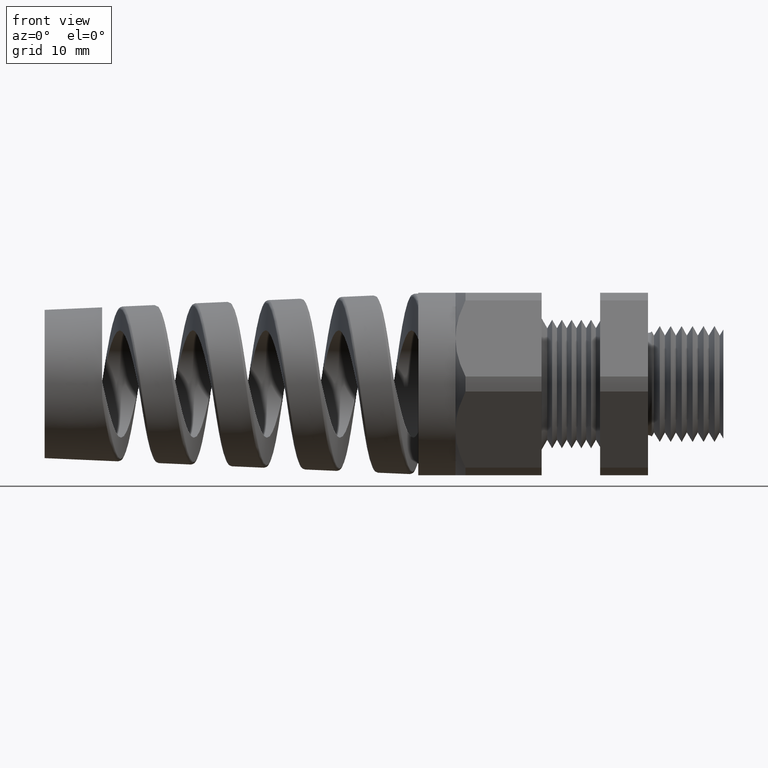
[diagram: clean part render]
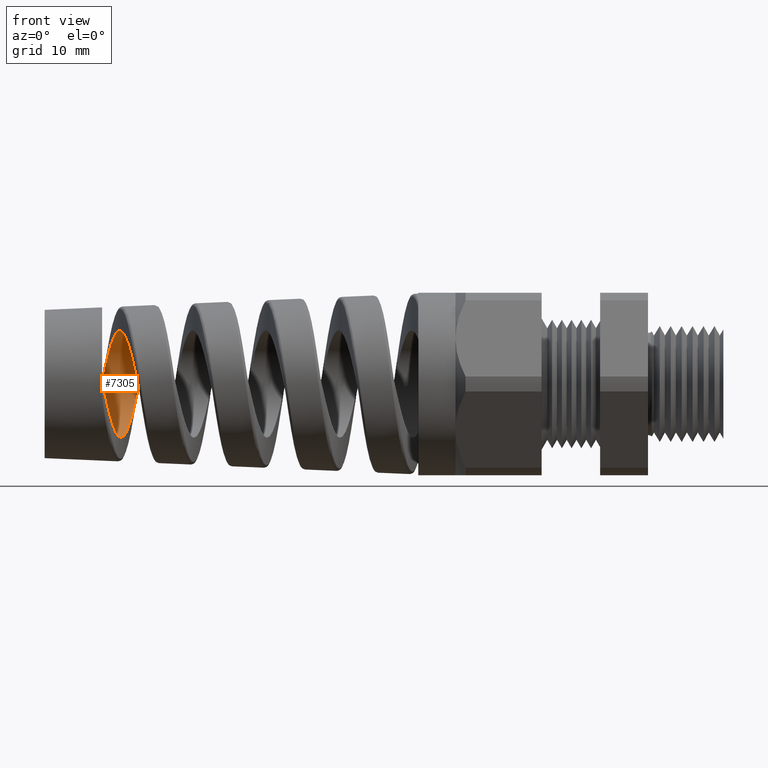
[diagram: same view with one face highlighted and labeled with its STEP entity id]
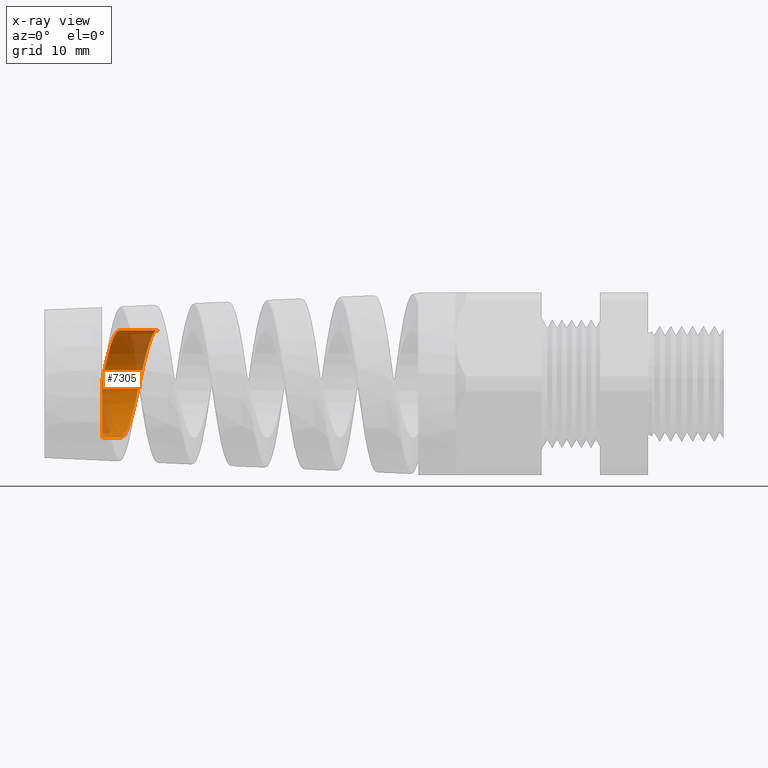
[diagram: x-ray of the same camera — body ghosted, the highlighted face saturated]
A machine part, front view. The second image highlights one B-rep face of the part: STEP entity #7305.
The next image is the same camera in x-ray: the body ghosted, the highlighted face saturated — about 25% of this face is hidden behind the body in this view.
In plain terms, the highlighted cylindrical surface (partial cylindrical patch) has radius 5.6007 mm, axis along (1, 0, 0).
Its self-contained STEP definition (entity closure, byte-faithful):
#539 = VERTEX_POINT ( 'NONE', #1653 ) ;
#1653 = CARTESIAN_POINT ( 'NONE',  ( -2.553780000000000200, 0.0000000000000000000, -0.2204999999999998400 ) ) ;
#2343 = CARTESIAN_POINT ( 'NONE',  ( -2.476014634052865000, -1.328507817036094700E-015, -0.2204999999999998600 ) ) ;
#3352 = CARTESIAN_POINT ( 'NONE',  ( -2.325946081408285100, 7.570847178066594400E-014, 0.2205000000000000800 ) ) ;
#3403 = DIRECTION ( 'NONE',  ( 1.000000000000000000, 0.0000000000000000000, 0.0000000000000000000 ) ) ;
#3404 = VECTOR ( 'NONE', #3403, 39.37007874015748100 ) ;
#3405 = CARTESIAN_POINT ( 'NONE',  ( 0.0000000000000000000, 2.700346192119914000E-017, 0.2205000000000000000 ) ) ;
#3406 = LINE ( 'NONE', #3405, #3404 ) ;
#3516 = CARTESIAN_POINT ( 'NONE',  ( -2.481476807531239400, -7.858701225621974900E-013, 0.2205000000000000000 ) ) ;
#4584 = DIRECTION ( 'NONE',  ( 1.000000000000000000, 0.0000000000000000000, 0.0000000000000000000 ) ) ;
#4585 = VECTOR ( 'NONE', #4584, 39.37007874015748100 ) ;
#4586 = CARTESIAN_POINT ( 'NONE',  ( 0.0000000000000000000, 0.0000000000000000000, -0.2205000000000000000 ) ) ;
#4587 = LINE ( 'NONE', #4586, #4585 ) ;
#4753 = CARTESIAN_POINT ( 'NONE',  ( -2.474458274676743000, 0.007184032369699435000, -0.2204999999999998600 ) ) ;
#4754 = CARTESIAN_POINT ( 'NONE',  ( -2.476014634052865000, -1.328507817036094700E-015, -0.2204999999999998600 ) ) ;
#4755 = B_SPLINE_CURVE_WITH_KNOTS ( 'NONE', 3,
 ( #4754, #4753, #4840, #4839, #4838, #4837, #4836, #4835, #4834, #4833, #4832, #4831, #4830, #4829, #4828, #4827, #4826, #4825, #4824, #4823, #4822, #4821, #4820, #4819, #4818, #4817, #4816, #4815, #4814, #4813, #4812, #4811, #4810, #4809, #4808, #4807, #4806, #4805, #4804, #4803, #4802, #4801, #4800, #4799 ),
 .UNSPECIFIED., .F., .F.,
 ( 4, 2, 2, 2, 2, 2, 2, 2, 2, 2, 2, 2, 2, 2, 2, 2, 2, 2, 2, 2, 2, 4 ),
 ( 0.009251178683671982400, 0.009808653680512910400, 0.01036612867735384000, 0.01148107867103569800, 0.01259602866471755700, 0.01371097865839941500, 0.01426845365524034500, 0.01482592865208127500, 0.01594087864576313600, 0.01705582863944499900, 0.01761330363628593000, 0.01817077863312685900, 0.01928572862680871800, 0.02040067862049057400, 0.02151562861417243000, 0.02207310361101336200, 0.02263057860785428600, 0.02374552860153613900, 0.02486047859521799100, 0.02541795359205891200, 0.02597542858889983700, 0.02709037858258168300 ),
 .UNSPECIFIED. ) ;
#4799 = CARTESIAN_POINT ( 'NONE',  ( -2.325946081408285100, 7.570847178066594400E-014, 0.2205000000000000800 ) ) ;
#4800 = CARTESIAN_POINT ( 'NONE',  ( -2.329063129735755600, 0.01438774692042410100, 0.2204999999999951700 ) ) ;
#4801 = CARTESIAN_POINT ( 'NONE',  ( -2.332163326131634600, 0.02869689424021176400, 0.2191045502701819700 ) ) ;
#4802 = CARTESIAN_POINT ( 'NONE',  ( -2.336872791447251400, 0.05002165916440903800, 0.2148734512136686900 ) ) ;
#4803 = CARTESIAN_POINT ( 'NONE',  ( -2.338454072061144600, 0.05711164681212680500, 0.2130978332861480600 ) ) ;
#4804 = CARTESIAN_POINT ( 'NONE',  ( -2.341583477296971200, 0.07093595385680616400, 0.2089031287541408300 ) ) ;
#4805 = CARTESIAN_POINT ( 'NONE',  ( -2.343140219140047900, 0.07770968310369767700, 0.2064777047512367500 ) ) ;
#4806 = CARTESIAN_POINT ( 'NONE',  ( -2.347808198316968700, 0.09761825357720377300, 0.1982354060156789100 ) ) ;
#4807 = CARTESIAN_POINT ( 'NONE',  ( -2.350928397595280400, 0.1103888662772155000, 0.1914315215993646600 ) ) ;
#4808 = CARTESIAN_POINT ( 'NONE',  ( -2.357229342264532100, 0.1345738015411450900, 0.1752758431689360700 ) ) ;
#4809 = CARTESIAN_POINT ( 'NONE',  ( -2.360331733382499100, 0.1456914576846284100, 0.1661349561909469300 ) ) ;
#4810 = CARTESIAN_POINT ( 'NONE',  ( -2.365001987166963600, 0.1609417481463595000, 0.1508961475031875600 ) ) ;
#4811 = CARTESIAN_POINT ( 'NONE',  ( -2.366561407204400300, 0.1657858623044891100, 0.1455601921289996200 ) ) ;
#4812 = CARTESIAN_POINT ( 'NONE',  ( -2.369699937441260400, 0.1749818126451231600, 0.1343654974913624000 ) ) ;
#4813 = CARTESIAN_POINT ( 'NONE',  ( -2.371282230904680200, 0.1793376038245450000, 0.1284931350312081800 ) ) ;
#4814 = CARTESIAN_POINT ( 'NONE',  ( -2.375978866828348600, 0.1913790675242145500, 0.1104678690673132500 ) ) ;
#4815 = CARTESIAN_POINT ( 'NONE',  ( -2.379076335906596300, 0.1981514523299121300, 0.09779539422182223500 ) ) ;
#4816 = CARTESIAN_POINT ( 'NONE',  ( -2.385319774857725100, 0.2091947738114126300, 0.07117221228433877300 ) ) ;
#4817 = CARTESIAN_POINT ( 'NONE',  ( -2.388486412777787800, 0.2134595722425724800, 0.05711765051608795600 ) ) ;
#4818 = CARTESIAN_POINT ( 'NONE',  ( -2.394723298943585800, 0.2190733575650059600, 0.02888388802870922900 ) ) ;
#4819 = CARTESIAN_POINT ( 'NONE',  ( -2.397822526431113900, 0.2204934999599589800, 0.01458019042508556600 ) ) ;
#4820 = CARTESIAN_POINT ( 'NONE',  ( -2.402527946146264100, 0.2205032169283677500, -0.007142142087445155900 ) ) ;
#4821 = CARTESIAN_POINT ( 'NONE',  ( -2.404110213679259800, 0.2201449267499650500, -0.01444683854109828900 ) ) ;
#4822 = CARTESIAN_POINT ( 'NONE',  ( -2.407241886391885600, 0.2187261026717310900, -0.02883386771862930800 ) ) ;
#4823 = CARTESIAN_POINT ( 'NONE',  ( -2.408799300326802700, 0.2176676552890171300, -0.03595328441082894900 ) ) ;
#4824 = CARTESIAN_POINT ( 'NONE',  ( -2.413467728697771700, 0.2134654504986669400, -0.05708886685842113500 ) ) ;
#4825 = CARTESIAN_POINT ( 'NONE',  ( -2.416580548311434700, 0.2092943703656216000, -0.07090862286214678900 ) ) ;
#4826 = CARTESIAN_POINT ( 'NONE',  ( -2.422887715803195600, 0.1981557259463516400, -0.09780835617483056600 ) ) ;
#4827 = CARTESIAN_POINT ( 'NONE',  ( -2.425991320828964100, 0.1913546301931617100, -0.1104995336675907600 ) ) ;
#4828 = CARTESIAN_POINT ( 'NONE',  ( -2.430660774076010400, 0.1793846845856560400, -0.1284251057830354500 ) ) ;
#4829 = CARTESIAN_POINT ( 'NONE',  ( -2.432219344010097700, 0.1750979038959038800, -0.1342138591238658800 ) ) ;
#4830 = CARTESIAN_POINT ( 'NONE',  ( -2.435355529418879300, 0.1659194563464140000, -0.1454075993040615800 ) ) ;
#4831 = CARTESIAN_POINT ( 'NONE',  ( -2.436938523234880400, 0.1610077903581548000, -0.1508278123896515100 ) ) ;
#4832 = CARTESIAN_POINT ( 'NONE',  ( -2.441638391144406400, 0.1456662224430342300, -0.1661648332958274600 ) ) ;
#4833 = CARTESIAN_POINT ( 'NONE',  ( -2.444736026820328900, 0.1345556199166397500, -0.1752783988104134300 ) ) ;
#4834 = CARTESIAN_POINT ( 'NONE',  ( -2.450976490463212100, 0.1106091687030071300, -0.1912938674906313500 ) ) ;
#4835 = CARTESIAN_POINT ( 'NONE',  ( -2.454143728804687900, 0.09765494467403793000, -0.1982198328617164600 ) ) ;
#4836 = CARTESIAN_POINT ( 'NONE',  ( -2.460383382241947600, 0.07104680728502363300, -0.2092365683469812900 ) ) ;
#4837 = CARTESIAN_POINT ( 'NONE',  ( -2.463481784125494600, 0.05729661743524628500, -0.2134168003659353800 ) ) ;
#4838 = CARTESIAN_POINT ( 'NONE',  ( -2.468183419219386100, 0.03601029488818216500, -0.2176599513554453000 ) ) ;
#4839 = CARTESIAN_POINT ( 'NONE',  ( -2.469766089132539500, 0.02877439884463480600, -0.2187341113068091400 ) ) ;
#4840 = CARTESIAN_POINT ( 'NONE',  ( -2.472900177006691200, 0.01437627542491303300, -0.2201497221959563500 ) ) ;
#5043 = CARTESIAN_POINT ( 'NONE',  ( -2.553780000000000200, 0.2201572124243300900, 0.01229031397273372400 ) ) ;
#5044 = CARTESIAN_POINT ( 'NONE',  ( -2.550738242126148900, 0.2193744134652117200, 0.02631264384245737100 ) ) ;
#5045 = CARTESIAN_POINT ( 'NONE',  ( -2.547730377780982100, 0.2172723630363539400, 0.04009993002003753300 ) ) ;
#5046 = CARTESIAN_POINT ( 'NONE',  ( -2.541685116348662500, 0.2104770067946356600, 0.06719161955023848800 ) ) ;
#5047 = CARTESIAN_POINT ( 'NONE',  ( -2.538648614471169700, 0.2057548947625355600, 0.08048133933073144100 ) ) ;
#5048 = CARTESIAN_POINT ( 'NONE',  ( -2.532654125290560600, 0.1940584994463528100, 0.1056107072783830800 ) ) ;
#5049 = CARTESIAN_POINT ( 'NONE',  ( -2.529668576409403800, 0.1870591706538236900, 0.1175782796376705600 ) ) ;
#5050 = CARTESIAN_POINT ( 'NONE',  ( -2.523614533057460600, 0.1707074869674532200, 0.1402666712426989000 ) ) ;
#5051 = CARTESIAN_POINT ( 'NONE',  ( -2.520591625649492200, 0.1614583863005222300, 0.1508083184323583700 ) ) ;
#5052 = CARTESIAN_POINT ( 'NONE',  ( -2.514595461005753500, 0.1413250166623560600, 0.1698210796118935200 ) ) ;
#5053 = CARTESIAN_POINT ( 'NONE',  ( -2.511593860456609000, 0.1303626942892606700, 0.1783893052964455300 ) ) ;
#5054 = CARTESIAN_POINT ( 'NONE',  ( -2.505518025375257800, 0.1066964591986011300, 0.1934762049994390200 ) ) ;
#5055 = CARTESIAN_POINT ( 'NONE',  ( -2.502528786174709200, 0.09432989920010240200, 0.1997846564293664100 ) ) ;
#5056 = CARTESIAN_POINT ( 'NONE',  ( -2.498036276228295300, 0.07502630402512935900, 0.2074590342965437200 ) ) ;
#5057 = CARTESIAN_POINT ( 'NONE',  ( -2.496537388313249100, 0.06846531716140209800, 0.2097171801911976200 ) ) ;
#5058 = CARTESIAN_POINT ( 'NONE',  ( -2.493523141206251700, 0.05508849894162593700, 0.2136212831290860400 ) ) ;
#5059 = CARTESIAN_POINT ( 'NONE',  ( -2.492000076875369600, 0.04823731519391812100, 0.2152723099360905300 ) ) ;
#5060 = CARTESIAN_POINT ( 'NONE',  ( -2.487466285445592900, 0.02766181671248351900, 0.2192033254891797300 ) ) ;
#5061 = FACE_OUTER_BOUND ( 'NONE', #7224, .T. ) ;
#5066 = CARTESIAN_POINT ( 'NONE',  ( -2.484477728660597700, 0.01386501486162418900, 0.2205000000000492100 ) ) ;
#5067 = CARTESIAN_POINT ( 'NONE',  ( -2.481476807531239400, -7.858701225621974900E-013, 0.2205000000000000000 ) ) ;
#5069 = B_SPLINE_CURVE_WITH_KNOTS ( 'NONE', 3,
 ( #5067, #5066, #5060, #5059, #5058, #5057, #5056, #5055, #5054, #5053, #5052, #5051, #5050, #5049, #5048, #5047, #5046, #5045, #5044, #5043 ),
 .UNSPECIFIED., .F., .F.,
 ( 4, 2, 2, 2, 2, 2, 2, 2, 2, 4 ),
 ( 0.1640936704202766400, 0.1651731010973034600, 0.1657128164358168700, 0.1662525317743303000, 0.1673319624513571200, 0.1684113931283839300, 0.1694908238054107800, 0.1705702544824375900, 0.1716496851594644400, 0.1727291158364912500 ),
 .UNSPECIFIED. ) ;
#5091 = DIRECTION ( 'NONE',  ( 0.0000000000000000000, 0.0000000000000000000, -1.000000000000000000 ) ) ;
#5092 = DIRECTION ( 'NONE',  ( 1.000000000000000000, 0.0000000000000000000, 0.0000000000000000000 ) ) ;
#5093 = CARTESIAN_POINT ( 'NONE',  ( 0.0000000000000000000, 0.0000000000000000000, 0.0000000000000000000 ) ) ;
#5094 = AXIS2_PLACEMENT_3D ( 'NONE', #5093, #5092, #5091 ) ;
#5096 = CYLINDRICAL_SURFACE ( 'NONE', #5094, 0.2205000000000000000 ) ;
#5384 = CARTESIAN_POINT ( 'NONE',  ( -2.553780000000000200, 0.2201572124243300900, 0.01229031397273372400 ) ) ;
#5544 = DIRECTION ( 'NONE',  ( 0.0000000000000000000, 0.0000000000000000000, -1.000000000000000000 ) ) ;
#5545 = DIRECTION ( 'NONE',  ( 1.000000000000000000, 0.0000000000000000000, 0.0000000000000000000 ) ) ;
#5546 = CARTESIAN_POINT ( 'NONE',  ( -2.553780000000000200, 0.0000000000000000000, 0.0000000000000000000 ) ) ;
#5547 = AXIS2_PLACEMENT_3D ( 'NONE', #5546, #5545, #5544 ) ;
#5548 = CIRCLE ( 'NONE', #5547, 0.2204999999999998400 ) ;
#6418 = VERTEX_POINT ( 'NONE', #2343 ) ;
#7033 = EDGE_CURVE ( 'NONE', #539, #6418, #4587, .T. ) ;
#7224 = EDGE_LOOP ( 'NONE', ( #7304, #7307, #7638, #7756, #7309 ) ) ;
#7229 = VERTEX_POINT ( 'NONE', #3516 ) ;
#7246 = EDGE_CURVE ( 'NONE', #7229, #7253, #3406, .T. ) ;
#7253 = VERTEX_POINT ( 'NONE', #3352 ) ;
#7275 = EDGE_CURVE ( 'NONE', #6418, #7253, #4755, .T. ) ;
#7297 = EDGE_CURVE ( 'NONE', #7229, #7637, #5069, .T. ) ;
#7304 = ORIENTED_EDGE ( 'NONE', *, *, #7246, .F. ) ;
#7305 = ADVANCED_FACE ( 'NONE', ( #5061 ), #5096, .F. ) ;
#7307 = ORIENTED_EDGE ( 'NONE', *, *, #7297, .T. ) ;
#7309 = ORIENTED_EDGE ( 'NONE', *, *, #7275, .T. ) ;
#7637 = VERTEX_POINT ( 'NONE', #5384 ) ;
#7638 = ORIENTED_EDGE ( 'NONE', *, *, #7750, .F. ) ;
#7750 = EDGE_CURVE ( 'NONE', #539, #7637, #5548, .T. ) ;
#7756 = ORIENTED_EDGE ( 'NONE', *, *, #7033, .T. ) ;